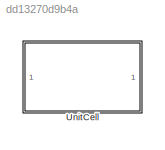
MODEL slx_dd13270d9b4a
KIND library
CONFIG AbsTol = auto
CONFIG EnableMultiTasking = off
CONFIG FixedStep = auto
CONFIG MaxStep = auto
CONFIG MinStep = auto
CONFIG RelTol = 1e-3
CONFIG SampleTimeConstraint = Unconstrained
CONFIG SolverName = VariableStepAuto
CONFIG StartTime = 0.0
CONFIG StopTime = 10.0
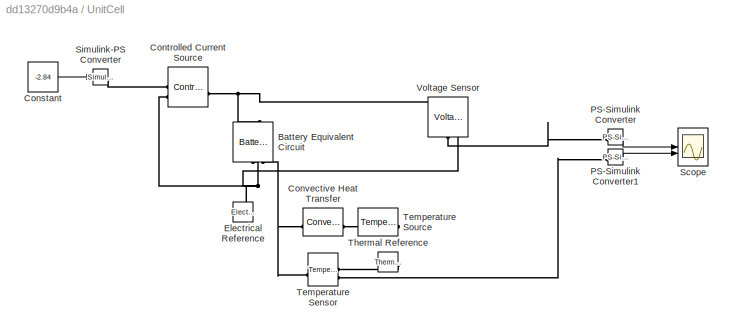
BLOCK [SubSystem] UnitCell
BLOCK [Reference] UnitCell/Battery Equivalent Circuit  REF=batt_lib/Cells/Battery Equivalent
Circuit
  AttributesFormatString = Panasonic:NCR18650PF
  NameLocation = right
  SourceBlock = batt_lib/Cells/Battery Equivalent\nCircuit
  SourceType = Battery Equivalent\nCircuit
  Tag = {'toolbox/physmod/battery/library/m/batt_lib_parts';'Cells/Battery_Equivalent_Circuit/Panasonic/NCR18650PF.xml'}
BLOCK [Constant] UnitCell/Constant
  Value = -2.84
BLOCK [Reference] UnitCell/Controlled Current Source  REF=fl_lib/Electrical/Electrical Sources/Controlled Current
Source
  SourceBlock = fl_lib/Electrical/Electrical Sources/Controlled Current\nSource
  SourceType = Controlled Current\nSource
BLOCK [Reference] UnitCell/Convective Heat Transfer  REF=fl_lib/Thermal/Thermal Elements/Convective Heat
Transfer
  SourceBlock = fl_lib/Thermal/Thermal Elements/Convective Heat\nTransfer
  SourceType = Convective Heat\nTransfer
BLOCK [Reference] UnitCell/Electrical Reference  REF=fl_lib/Electrical/Electrical Elements/Electrical Reference
  LibrarySourceBlock = ee_lib/Connectors &\nReferences/Electrical Reference
  NameLocation = right
  SourceBlock = fl_lib/Electrical/Electrical Elements/Electrical Reference
  SourceType = Electrical Reference
BLOCK [Reference] UnitCell/PS-Simulink Converter  REF=nesl_utility/PS-Simulink
Converter
  SourceBlock = nesl_utility/PS-Simulink\nConverter
  SourceType = PS-Simulink\nConverter
BLOCK [Reference] UnitCell/PS-Simulink Converter1  REF=nesl_utility/PS-Simulink
Converter
  SourceBlock = nesl_utility/PS-Simulink\nConverter
  SourceType = PS-Simulink\nConverter
BLOCK [Scope] UnitCell/Scope
  Floating = off
  NumInputPorts = 2
  ScopeSpecificationString = Simulink.scopes.TimeScopeBlockCfg('CurrentConfiguration', extmgr.ConfigurationSet(extmgr.Configuration('Core','General UI',true),extmgr.Configuration('Core','Source UI',true),extmgr.Configuration('Sources','WiredSimulink',true),extmgr.Configuration('Visuals','Time Domain',true,'SerializedDisplays',{struct('MinYLimReal','-10','MaxYLimReal','10','YLabelReal','','MinYLimMag','0','MaxYLimMag','10','Le...<+810ch>
BLOCK [Reference] UnitCell/Simulink-PS Converter  REF=nesl_utility/Simulink-PS
Converter
  SourceBlock = nesl_utility/Simulink-PS\nConverter
  SourceType = Simulink-PS\nConverter
BLOCK [Reference] UnitCell/Temperature Sensor  REF=fl_lib/Thermal/Thermal Sensors/Temperature Sensor
  SourceBlock = fl_lib/Thermal/Thermal Sensors/Temperature Sensor
  SourceType = Temperature Sensor
BLOCK [Reference] UnitCell/Temperature Source  REF=fl_lib/Thermal/Thermal Sources/Temperature Source
  NameLocation = top
  SourceBlock = fl_lib/Thermal/Thermal Sources/Temperature Source
  SourceType = Temperature Source
BLOCK [Reference] UnitCell/Thermal Reference  REF=fl_lib/Thermal/Thermal Elements/Thermal Reference
  NameLocation = top
  SourceBlock = fl_lib/Thermal/Thermal Elements/Thermal Reference
  SourceType = Thermal Reference
BLOCK [Reference] UnitCell/Voltage Sensor  REF=fl_lib/Electrical/Electrical Sensors/Voltage Sensor
  NameLocation = right
  SourceBlock = fl_lib/Electrical/Electrical Sensors/Voltage Sensor
  SourceType = Voltage Sensor
LINE UnitCell/Constant:1 -> UnitCell/Simulink-PS Converter:1
LINE UnitCell/PS-Simulink Converter1:1 -> UnitCell/Scope:2
LINE UnitCell/PS-Simulink Converter:1 -> UnitCell/Scope:1
PNET net1: UnitCell/Battery Equivalent Circuit:LConn1 -- UnitCell/Controlled Current Source:LConn1 -- UnitCell/Voltage Sensor:LConn1
PNET net2: UnitCell/Battery Equivalent Circuit:RConn1 -- UnitCell/Controlled Current Source:RConn2 -- UnitCell/Electrical Reference:LConn1 -- UnitCell/Voltage Sensor:RConn2
PNET net3: UnitCell/Battery Equivalent Circuit:RConn2 -- UnitCell/Convective Heat Transfer:LConn1 -- UnitCell/Temperature Sensor:LConn1
PLINE UnitCell/Controlled Current Source:RConn1 -- UnitCell/Simulink-PS Converter:RConn1
PLINE UnitCell/Convective Heat Transfer:RConn1 -- UnitCell/Temperature Source:LConn1
PLINE UnitCell/PS-Simulink Converter1:LConn1 -- UnitCell/Temperature Sensor:RConn2
PLINE UnitCell/PS-Simulink Converter:LConn1 -- UnitCell/Voltage Sensor:RConn1
PLINE UnitCell/Temperature Sensor:RConn1 -- UnitCell/Thermal Reference:LConn1
note: PNET lines group multi-terminal physical nets as a canonical sorted terminal list (undirected conserving connections); 2-terminal nets keep the pairwise PLINE form
